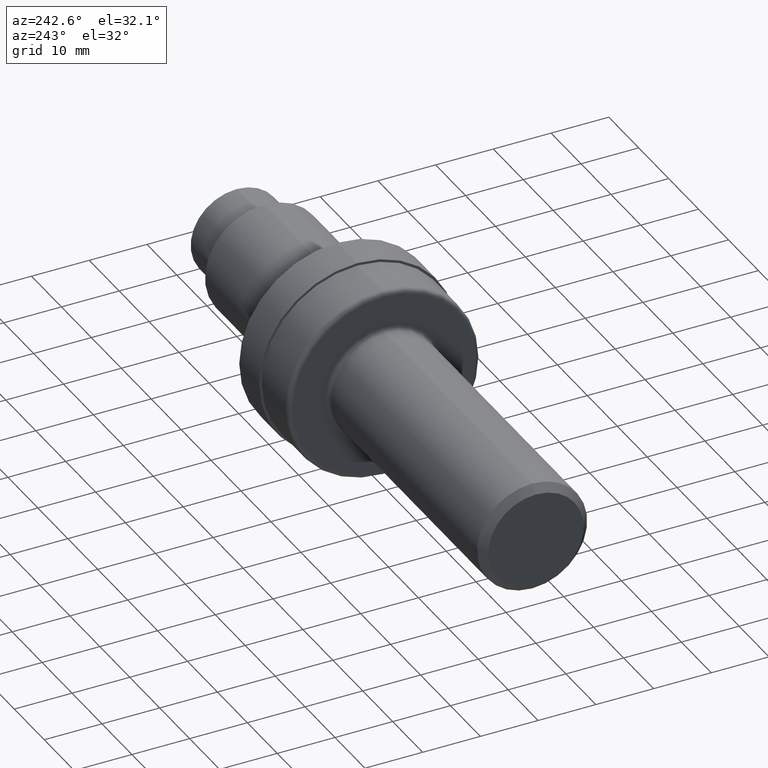
[diagram: clean part render]
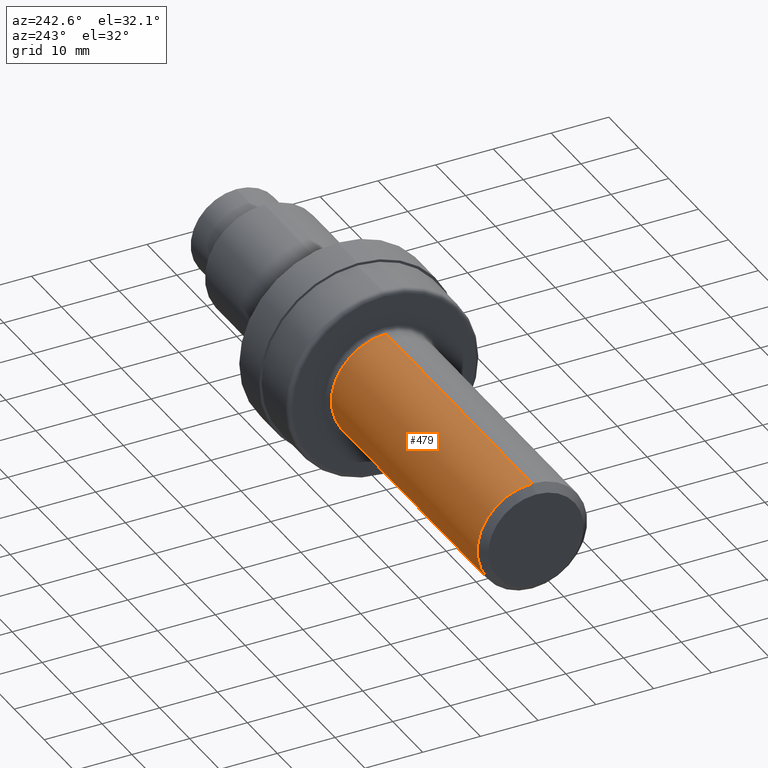
[diagram: same view with one face highlighted and labeled with its STEP entity id]
A machine part, auxiliary view. The second image highlights one B-rep face of the part: STEP entity #479.
In plain terms, the highlighted cylindrical surface (partial cylindrical patch) has radius 9.5212 mm, axis along (-1, -0, -0).
Its self-contained STEP definition (entity closure, byte-faithful):
#98 = ORIENTED_EDGE ( 'NONE', *, *, #210, .T. ) ;
#114 = AXIS2_PLACEMENT_3D ( 'NONE', #595, #118, #525 ) ;
#115 = CARTESIAN_POINT ( 'NONE',  ( 0.0000000000000000000, 0.0000000000000000000, 0.0000000000000000000 ) ) ;
#118 = DIRECTION ( 'NONE',  ( -1.000000000000000000, -0.0000000000000000000, -0.0000000000000000000 ) ) ;
#133 = ORIENTED_EDGE ( 'NONE', *, *, #579, .F. ) ;
#142 = CIRCLE ( 'NONE', #837, 0.3748500000000005161 ) ;
#180 = CARTESIAN_POINT ( 'NONE',  ( 1.969999999999999973, 0.0000000000000000000, 0.3748500000000005161 ) ) ;
#185 = DIRECTION ( 'NONE',  ( -1.000000000000000000, -0.0000000000000000000, -0.0000000000000000000 ) ) ;
#193 = DIRECTION ( 'NONE',  ( -1.000000000000000000, -0.0000000000000000000, -0.0000000000000000000 ) ) ;
#195 = DIRECTION ( 'NONE',  ( -1.000000000000000000, -0.0000000000000000000, -0.0000000000000000000 ) ) ;
#210 = EDGE_CURVE ( 'NONE', #250, #702, #235, .T. ) ;
#235 = LINE ( 'NONE', #248, #397 ) ;
#248 = CARTESIAN_POINT ( 'NONE',  ( 0.0000000000000000000, 4.590588526603856213E-17, -0.3748500000000002386 ) ) ;
#250 = VERTEX_POINT ( 'NONE', #784 ) ;
#272 = CARTESIAN_POINT ( 'NONE',  ( 0.05000000000000000278, 4.590588526603855597E-17, -0.3748500000000000165 ) ) ;
#362 = EDGE_CURVE ( 'NONE', #496, #250, #142, .T. ) ;
#389 = CARTESIAN_POINT ( 'NONE',  ( 0.05000000000000000278, 0.0000000000000000000, 0.3748500000000000165 ) ) ;
#397 = VECTOR ( 'NONE', #455, 39.37007874015748143 ) ;
#450 = EDGE_CURVE ( 'NONE', #831, #702, #742, .T. ) ;
#455 = DIRECTION ( 'NONE',  ( -1.000000000000000000, -0.0000000000000000000, -0.0000000000000000000 ) ) ;
#479 = ADVANCED_FACE ( 'NONE', ( #716 ), #694, .T. ) ;
#485 = LINE ( 'NONE', #662, #634 ) ;
#496 = VERTEX_POINT ( 'NONE', #180 ) ;
#525 = DIRECTION ( 'NONE',  ( 0.0000000000000000000, 0.0000000000000000000, 1.000000000000000000 ) ) ;
#559 = ORIENTED_EDGE ( 'NONE', *, *, #450, .F. ) ;
#579 = EDGE_CURVE ( 'NONE', #496, #831, #485, .T. ) ;
#595 = CARTESIAN_POINT ( 'NONE',  ( 0.05000000000000000278, 0.0000000000000000000, 0.0000000000000000000 ) ) ;
#603 = CARTESIAN_POINT ( 'NONE',  ( 1.969999999999999973, 0.0000000000000000000, 0.0000000000000000000 ) ) ;
#634 = VECTOR ( 'NONE', #193, 39.37007874015748143 ) ;
#660 = DIRECTION ( 'NONE',  ( 0.0000000000000000000, 0.0000000000000000000, 1.000000000000000000 ) ) ;
#662 = CARTESIAN_POINT ( 'NONE',  ( 0.0000000000000000000, 0.0000000000000000000, 0.3748500000000002386 ) ) ;
#694 = CYLINDRICAL_SURFACE ( 'NONE', #814, 0.3748500000000002386 ) ;
#702 = VERTEX_POINT ( 'NONE', #272 ) ;
#716 = FACE_OUTER_BOUND ( 'NONE', #747, .T. ) ;
#742 = CIRCLE ( 'NONE', #114, 0.3748500000000000165 ) ;
#747 = EDGE_LOOP ( 'NONE', ( #765, #98, #559, #133 ) ) ;
#765 = ORIENTED_EDGE ( 'NONE', *, *, #362, .T. ) ;
#784 = CARTESIAN_POINT ( 'NONE',  ( 1.969999999999999973, 4.774285546475963101E-17, -0.3748500000000005161 ) ) ;
#814 = AXIS2_PLACEMENT_3D ( 'NONE', #115, #185, #854 ) ;
#831 = VERTEX_POINT ( 'NONE', #389 ) ;
#837 = AXIS2_PLACEMENT_3D ( 'NONE', #603, #195, #660 ) ;
#854 = DIRECTION ( 'NONE',  ( 0.0000000000000000000, 0.0000000000000000000, 1.000000000000000000 ) ) ;